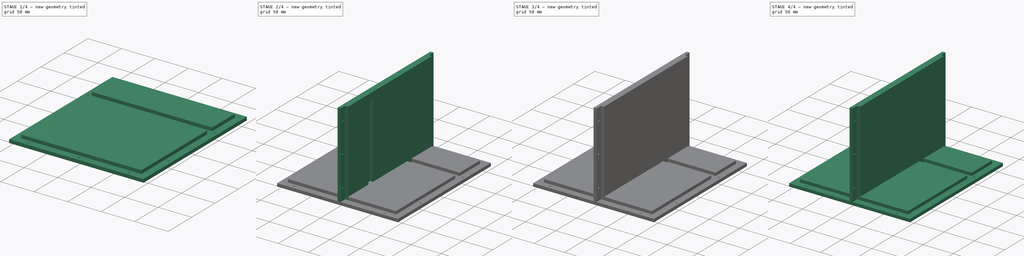
[diagram: build sequence overview — one tinted view per stage of 4, left to right]
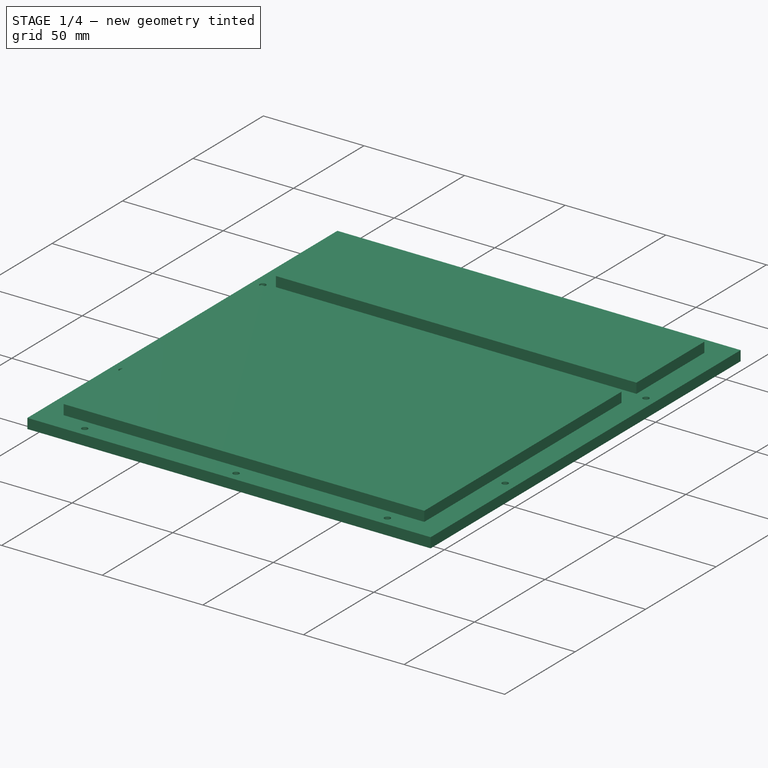
[diagram: stage 1 of 4 — iso view after this stage's code; geometry added in this stage tinted green]
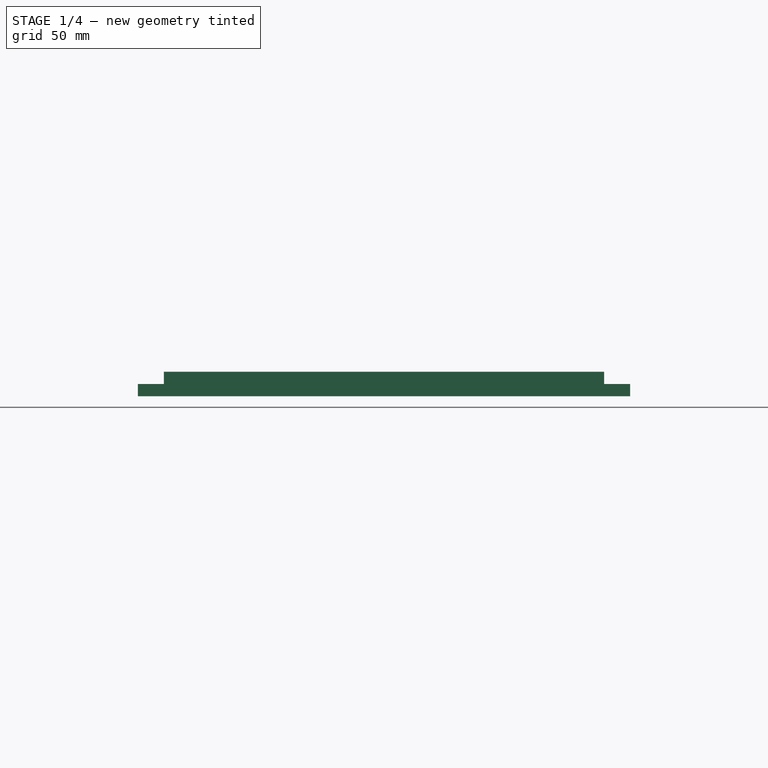
[diagram: stage 1 of 4 — front view after this stage's code; geometry added in this stage tinted green]
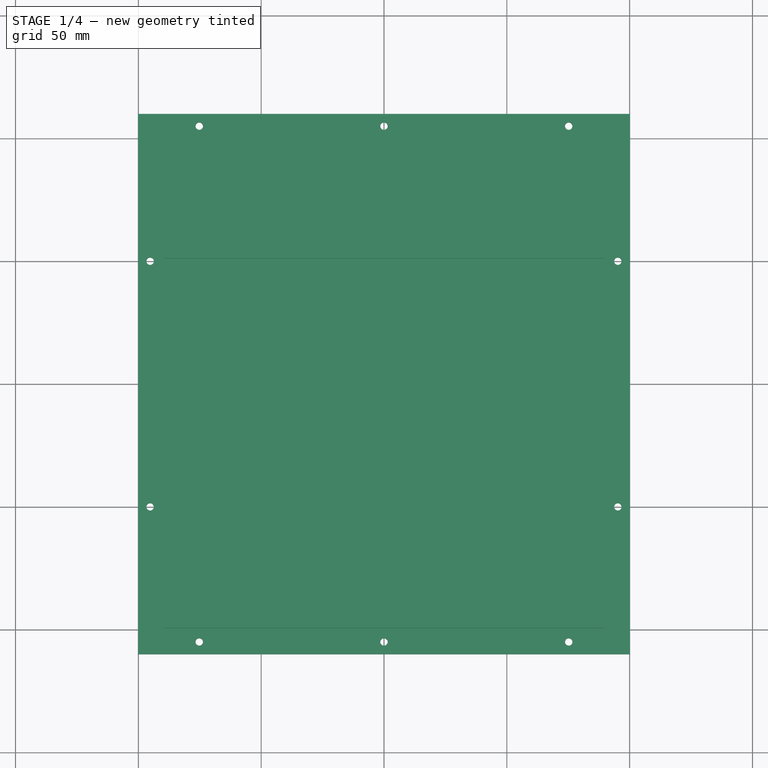
[diagram: stage 1 of 4 — top view after this stage's code; geometry added in this stage tinted green]
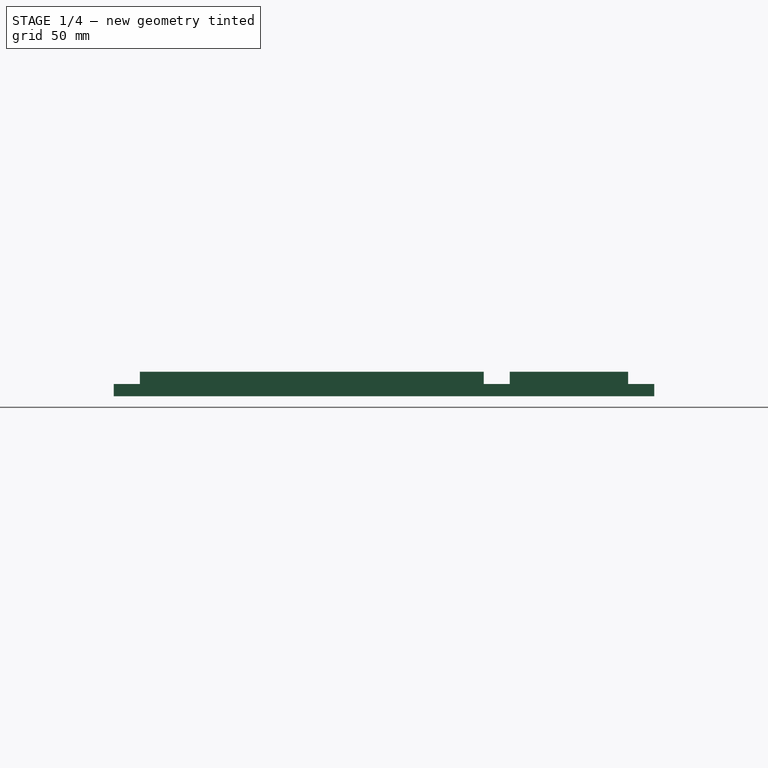
[diagram: stage 1 of 4 — right view after this stage's code; geometry added in this stage tinted green]
FCSTD DOCUMENT  (FreeCAD 1.0R39109 (Git))
Label: Powerstation
License: All rights reserved
LicenseURL: http://en.wikipedia.org/wiki/All_rights_reserved
objects: Sketcher::SketchObject×13, PartDesign::Pad×8, PartDesign::Pocket×5, PartDesign::Body×4, TechDraw::DrawSVGTemplate×4, TechDraw::DrawProjGroupItem×4, TechDraw::DrawPage×4, TechDraw::DrawViewDimension×4
note: 75 computed .brp shape members not serialized (recipe doc carries the construction recipe); baked Part::Feature solids carry a one-line shape summary decoded from their .brp

FEATURE [Sketcher::SketchObject] Sketch
  ArcFitTolerance = 1e-06
  AttachmentSupport = -> [XY_Plane]
  FullyConstrained = true
  MakeInternals = false
  MapMode = 5
  sketch-geometry (5):
    g0: LineSegment StartX=-100.2 StartY=110 StartZ=0 EndX=-100.2 EndY=-110 EndZ=0
    g1: LineSegment StartX=-100.2 StartY=-110 StartZ=0 EndX=100.2 EndY=-110 EndZ=0
    g2: LineSegment StartX=100.2 StartY=-110 StartZ=0 EndX=100.2 EndY=110 EndZ=0
    g3: LineSegment StartX=100.2 StartY=110 StartZ=0 EndX=-100.2 EndY=110 EndZ=0
    g4: GeomPoint [constr] X=-6e-16 Y=-2e-16 Z=0
  constraints (12):
    c: Coincident(g0,g1)
    c: Coincident(g1,g2)
    c: Coincident(g2,g3)
    c: Coincident(g3,g0)
    c: Vertical(g0)
    c: Vertical(g2)
    c: Horizontal(g1)
    c: Horizontal(g3)
    c: Symmetric(g2,g0,g4)
    c: Coincident(g4,g-1)
    c: DistanceX(g3,g3) = 200.4
    c: DistanceY(g0,g0) = 220
FEATURE [PartDesign::Pad] Pad
  Direction = (0,0,1)
  Length = 5
  Length2 = 10
  Profile = -> Sketch
  ReferenceAxis = -> Sketch [N_Axis]
  Suppressed = false
  Type = 0
FEATURE [Sketcher::SketchObject] Sketch001
  ArcFitTolerance = 1e-06
  AttachmentSupport = -> [Pad]
  ExternalGeometry = -> [Pad]
  FullyConstrained = true
  MakeInternals = false
  MapMode = 5
  Placement = pos=(0,0,5) rot=(0,0,1;0rad)
  sketch-geometry (8):
    g0: LineSegment StartX=-89.6 StartY=99.4 StartZ=0 EndX=-89.6 EndY=51.2 EndZ=0
    g1: LineSegment StartX=-89.6 StartY=51.2 StartZ=0 EndX=89.6 EndY=51.2 EndZ=0
    g2: LineSegment StartX=89.6 StartY=51.2 StartZ=0 EndX=89.6 EndY=99.4 EndZ=0
    g3: LineSegment StartX=89.6 StartY=99.4 StartZ=0 EndX=-89.6 EndY=99.4 EndZ=0
    g4: LineSegment StartX=-89.6 StartY=40.6 StartZ=0 EndX=-89.6 EndY=-99.4 EndZ=0
    g5: LineSegment StartX=-89.6 StartY=-99.4 StartZ=0 EndX=89.6 EndY=-99.4 EndZ=0
    g6: LineSegment StartX=89.6 StartY=-99.4 StartZ=0 EndX=89.6 EndY=40.6 EndZ=0
    g7: LineSegment StartX=89.6 StartY=40.6 StartZ=0 EndX=-89.6 EndY=40.6 EndZ=0
  constraints (24):
    c: Coincident(g0,g1)
    c: Coincident(g1,g2)
    c: Coincident(g2,g3)
    c: Coincident(g3,g0)
    c: Vertical(g0)
    c: Vertical(g2)
    c: Horizontal(g1)
    c: Horizontal(g3)
    c: Coincident(g4,g5)
    c: Coincident(g5,g6)
    c: Coincident(g6,g7)
    c: Coincident(g7,g4)
    c: Vertical(g4)
    c: Vertical(g6)
    c: Horizontal(g5)
    c: Horizontal(g7)
    c: Distance(g-6,g6) = 10.6
    c: Distance(g-6,g5) = 10.6
    c: Distance(g-6,g4) = 10.6
    c: Distance(g-4,g3) = 10.6
    c: Vertical(g0,g4)
    c: Vertical(g1,g6)
    c: Distance(g6,g1) = 10.6
    c: DistanceY(g6,g6) = 140
FEATURE [PartDesign::Pad] Pad001
  BaseFeature = -> Pad
  Direction = (0,0,1)
  Length = 5
  Length2 = 10
  Profile = -> Sketch001
  ReferenceAxis = -> Sketch001 [N_Axis]
  Suppressed = false
  Type = 0
FEATURE [Sketcher::SketchObject] Sketch002
  ArcFitTolerance = 1e-06
  AttachmentSupport = -> [Pad001]
  ExternalGeometry = -> [Pad001]
  FullyConstrained = true
  MakeInternals = false
  MapMode = 5
  Placement = pos=(0,0,5) rot=(0,0,1;0rad)
  sketch-geometry (10):
    g0: Circle CenterX=-75.2 CenterY=105 CenterZ=0 NormalX=0 NormalY=0 NormalZ=1 AngleXU=0 Radius=1.5
    g1: Circle CenterX=0 CenterY=105 CenterZ=0 NormalX=0 NormalY=0 NormalZ=1 AngleXU=0 Radius=1.5
    g2: Circle CenterX=75.2 CenterY=105 CenterZ=0 NormalX=0 NormalY=0 NormalZ=1 AngleXU=0 Radius=1.5
    g3: Circle CenterX=-75.2 CenterY=-105 CenterZ=0 NormalX=0 NormalY=0 NormalZ=1 AngleXU=0 Radius=1.5
    g4: Circle CenterX=0 CenterY=-105 CenterZ=0 NormalX=0 NormalY=0 NormalZ=1 AngleXU=0 Radius=1.5
    g5: Circle CenterX=75.2 CenterY=-105 CenterZ=0 NormalX=0 NormalY=0 NormalZ=1 AngleXU=0 Radius=1.5
    g6: Circle CenterX=-95.2 CenterY=50 CenterZ=0 NormalX=0 NormalY=0 NormalZ=1 AngleXU=0 Radius=1.5
    g7: Circle CenterX=-95.2 CenterY=-50 CenterZ=0 NormalX=0 NormalY=0 NormalZ=1 AngleXU=0 Radius=1.5
    g8: Circle CenterX=95.2 CenterY=50 CenterZ=0 NormalX=0 NormalY=0 NormalZ=1 AngleXU=0 Radius=1.5
    g9: Circle CenterX=95.2 CenterY=-50 CenterZ=0 NormalX=0 NormalY=0 NormalZ=1 AngleXU=0 Radius=1.5
  constraints (30):
    c: PointOnObject(g1,g-2)
    c: PointOnObject(g4,g-2)
    c: Equal(g0,g1)
    c: Equal(g1,g2)
    c: Equal(g2,g8)
    c: Equal(g8,g9)
    c: Equal(g9,g5)
    c: Equal(g5,g4)
    c: Equal(g4,g3)
    c: Equal(g3,g7)
    c: Equal(g7,g6)
    c: Diameter(g2) = 3
    c: DistanceX(g2,g-4) = 25
    c: DistanceY(g2,g-4) = 5
    c: Distance(g0,g-3) = 25
    c: Horizontal(g0,g1)
    c: Horizontal(g1,g2)
    c: Vertical(g2,g5)
    c: Vertical(g3,g0)
    c: Horizontal(g3,g4)
    c: Horizontal(g4,g5)
    c: DistanceY(g-4,g5) = 5
    c: Distance(g8,g-1) = 50
    c: Distance(g9,g-1) = 50
    c: Distance(g9,g-4) = 5
    c: Distance(g7,g-3) = 5
    c: Vertical(g6,g7)
    c: Horizontal(g7,g9)
    c: Vertical(g9,g8)
    c: Horizontal(g8,g6)
FEATURE [PartDesign::Pocket] Pocket
  BaseFeature = -> Pad001
  Direction = (0,0,-1)
  Length = 5
  Length2 = 5
  Profile = -> Sketch002
  ReferenceAxis = -> Sketch002 [N_Axis]
  Suppressed = false
  Type = 0
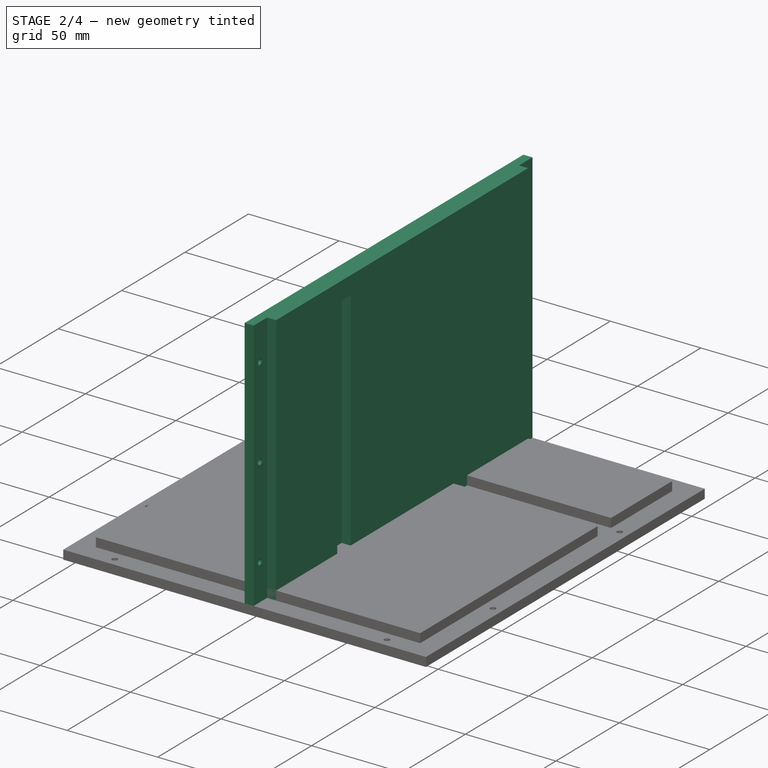
[diagram: stage 2 of 4 — iso view after this stage's code; geometry added in this stage tinted green]
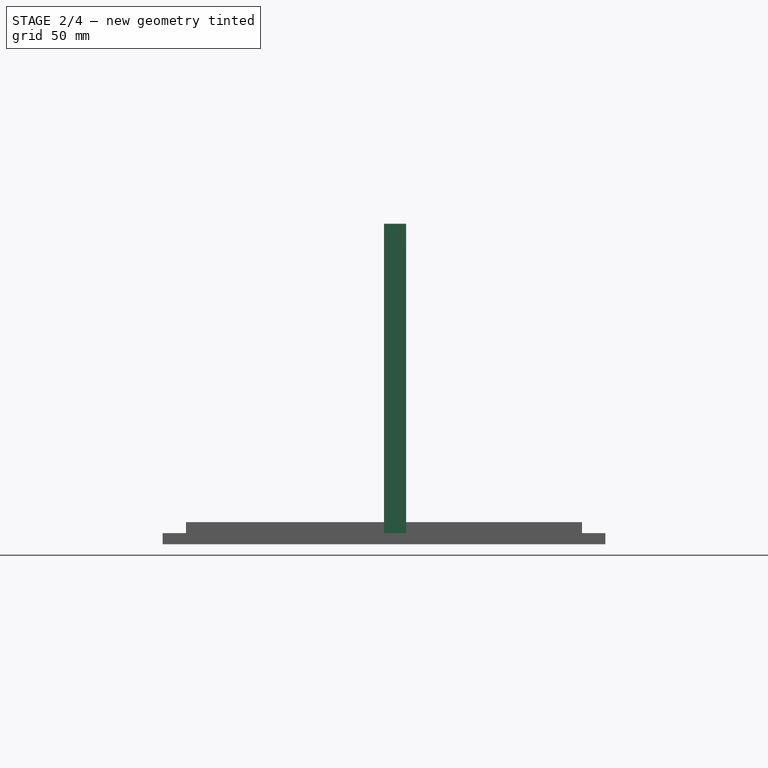
[diagram: stage 2 of 4 — front view after this stage's code; geometry added in this stage tinted green]
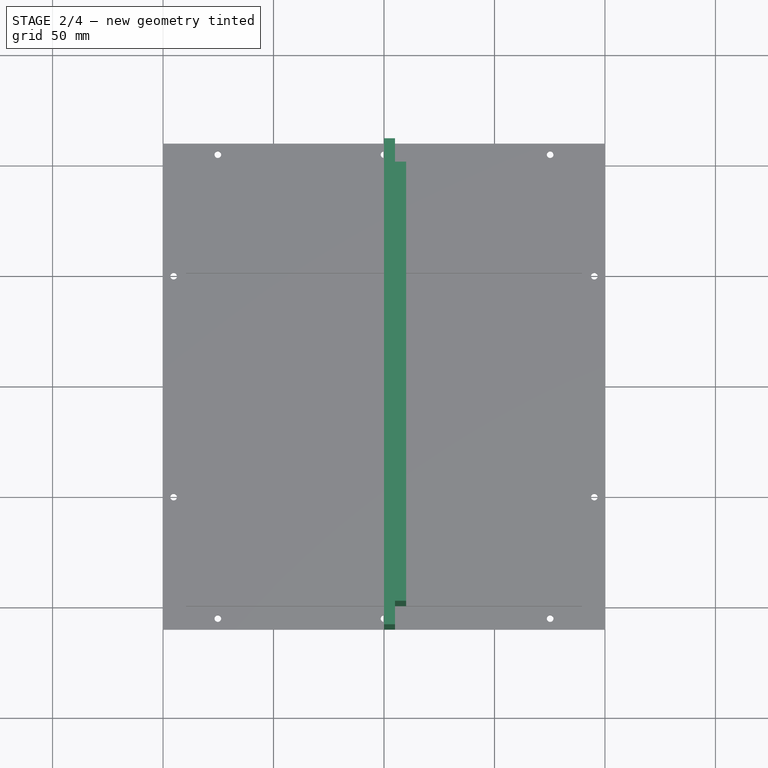
[diagram: stage 2 of 4 — top view after this stage's code; geometry added in this stage tinted green]
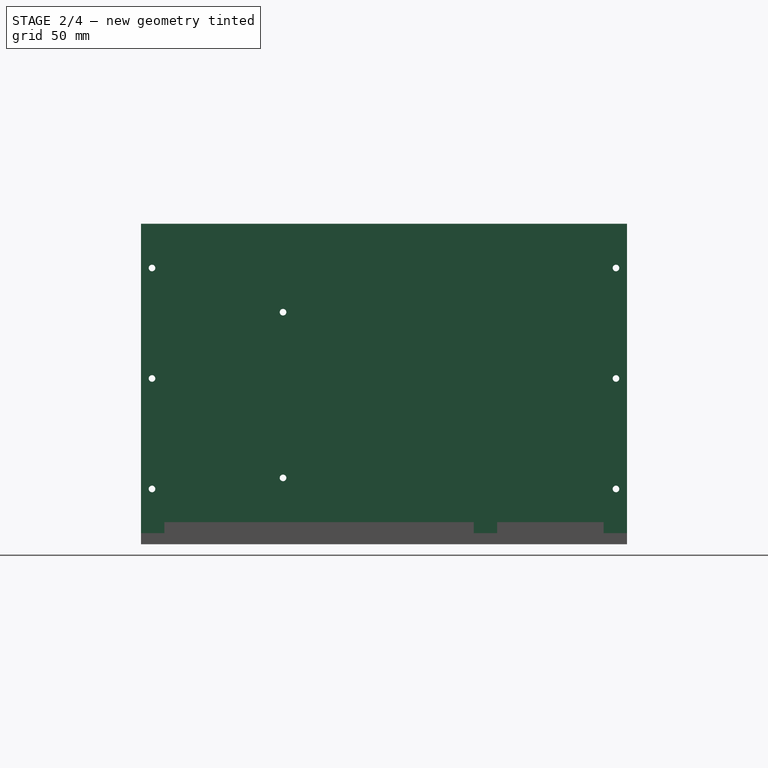
[diagram: stage 2 of 4 — right view after this stage's code; geometry added in this stage tinted green]
FEATURE [PartDesign::Body] Body002  label="Seitenteil-geschlossen"
  AllowCompound = false
  Group = -> [Sketch006,Pad004,Sketch007,Pad005,Sketch008,Pocket002]
  Origin = -> Origin002
  Placement = pos=(-100,0,0) rot=(0,0,1;0rad)
  Tip = -> Pocket002
FEATURE [Sketcher::SketchObject] Sketch009
  ArcFitTolerance = 1e-06
  AttachmentSupport = -> [YZ_Plane003]
  FullyConstrained = true
  MakeInternals = false
  MapMode = 5
  Placement = pos=(0,0,0) rot=(0.57735,0.57735,0.57735;2.0944rad)
  sketch-geometry (4):
    g0: LineSegment StartX=-110 StartY=5 StartZ=0 EndX=110 EndY=5 EndZ=0
    g1: LineSegment StartX=110 StartY=5 StartZ=0 EndX=110 EndY=145 EndZ=0
    g2: LineSegment StartX=110 StartY=145 StartZ=0 EndX=-110 EndY=145 EndZ=0
    g3: LineSegment StartX=-110 StartY=145 StartZ=0 EndX=-110 EndY=5 EndZ=0
  constraints (12):
    c: Coincident(g0,g1)
    c: Coincident(g1,g2)
    c: Coincident(g2,g3)
    c: Coincident(g3,g0)
    c: Horizontal(g0)
    c: Horizontal(g2)
    c: Vertical(g1)
    c: Vertical(g3)
    c: Distance(g1,g3) = 220
    c: Distance(g0,g2) = 140
    c: Distance(g0,g-1) = 5
    c: DistanceX(g0,g-1) = 110
FEATURE [PartDesign::Pad] Pad006
  Direction = (1,0,0)
  Length = 5
  Length2 = 10
  Placement = pos=(0,0,0) rot=(1,1,1;2.0944rad)
  Profile = -> Sketch009
  ReferenceAxis = -> Sketch009 [N_Axis]
  Suppressed = false
  Type = 0
FEATURE [Sketcher::SketchObject] Sketch010
  ArcFitTolerance = 1e-06
  AttachmentSupport = -> [Pad006]
  ExternalGeometry = -> [Pad006]
  FullyConstrained = true
  MakeInternals = false
  MapMode = 5
  Placement = pos=(5,0,0) rot=(0.57735,0.57735,0.57735;2.0944rad)
  sketch-geometry (8):
    g0: LineSegment StartX=-99.4 StartY=5 StartZ=0 EndX=-99.4 EndY=145 EndZ=0
    g1: LineSegment StartX=-99.4 StartY=145 StartZ=0 EndX=99.4 EndY=145 EndZ=0
    g2: LineSegment StartX=99.4 StartY=145 StartZ=0 EndX=99.4 EndY=5 EndZ=0
    g3: LineSegment StartX=99.4 StartY=5 StartZ=0 EndX=-40.6 EndY=5 EndZ=0
    g4: LineSegment StartX=-40.6 StartY=5 StartZ=0 EndX=-40.6 EndY=135 EndZ=0
    g5: LineSegment StartX=-40.6 StartY=135 StartZ=0 EndX=-51.2 EndY=135 EndZ=0
    g6: LineSegment StartX=-51.2 StartY=135 StartZ=0 EndX=-51.2 EndY=5 EndZ=0
    g7: LineSegment StartX=-51.2 StartY=5 StartZ=0 EndX=-99.4 EndY=5 EndZ=0
  constraints (24):
    c: PointOnObject(g0,g-4)
    c: PointOnObject(g0,g-3)
    c: Vertical(g0)
    c: Coincident(g0,g1)
    c: PointOnObject(g1,g-3)
    c: Coincident(g1,g2)
    c: PointOnObject(g2,g-4)
    c: Vertical(g2)
    c: Coincident(g2,g3)
    c: PointOnObject(g3,g-4)
    c: Coincident(g3,g4)
    c: Vertical(g4)
    c: Coincident(g4,g5)
    c: Horizontal(g5)
    c: Coincident(g5,g6)
    c: PointOnObject(g6,g-4)
    c: Vertical(g6)
    c: Coincident(g6,g7)
    c: Coincident(g7,g0)
    c: Distance(g-4,g0) = 10.6
    c: Distance(g6,g3) = 10.6
    c: Distance(g2,g-4) = 10.6
    c: DistanceY(g4,g4) = 130
    c: DistanceX(g3,g2) = 140
FEATURE [PartDesign::Pad] Pad007
  BaseFeature = -> Pad006
  Direction = (1,0,0)
  Length = 5
  Length2 = 10
  Placement = pos=(0,0,0) rot=(1,1,1;2.0944rad)
  Profile = -> Sketch010
  ReferenceAxis = -> Sketch010 [N_Axis]
  Suppressed = false
  Type = 0
FEATURE [Sketcher::SketchObject] Sketch011
  ArcFitTolerance = 1e-06
  AttachmentSupport = -> [Pad007]
  ExternalGeometry = -> [Pad007]
  FullyConstrained = true
  MakeInternals = false
  MapMode = 5
  Placement = pos=(5,0,0) rot=(0.57735,0.57735,0.57735;2.0944rad)
  sketch-geometry (8):
    g0: Circle CenterX=-105 CenterY=125 CenterZ=0 NormalX=0 NormalY=0 NormalZ=1 AngleXU=0 Radius=1.5
    g1: Circle CenterX=-105 CenterY=75 CenterZ=0 NormalX=0 NormalY=0 NormalZ=1 AngleXU=0 Radius=1.5
    g2: Circle CenterX=-105 CenterY=25 CenterZ=0 NormalX=0 NormalY=0 NormalZ=1 AngleXU=0 Radius=1.5
    g3: Circle CenterX=105 CenterY=125 CenterZ=0 NormalX=0 NormalY=0 NormalZ=1 AngleXU=0 Radius=1.5
    g4: Circle CenterX=105 CenterY=75 CenterZ=0 NormalX=0 NormalY=0 NormalZ=1 AngleXU=0 Radius=1.5
    g5: Circle CenterX=105 CenterY=25 CenterZ=0 NormalX=0 NormalY=0 NormalZ=1 AngleXU=0 Radius=1.5
    g6: Circle CenterX=-45.7 CenterY=105 CenterZ=0 NormalX=0 NormalY=0 NormalZ=1 AngleXU=0 Radius=1.5
    g7: Circle CenterX=-45.7 CenterY=30 CenterZ=0 NormalX=0 NormalY=0 NormalZ=1 AngleXU=0 Radius=1.5
  constraints (24):
    c: Vertical(g0,g1)
    c: Vertical(g1,g2)
    c: Vertical(g6,g7)
    c: Vertical(g3,g4)
    c: Vertical(g4,g5)
    c: Horizontal(g0,g3)
    c: Horizontal(g1,g4)
    c: Horizontal(g2,g5)
    c: DistanceY(g3,g-4) = 20
    c: Distance(g3,g4) = 50
    c: DistanceY(g-4,g5) = 20
    c: DistanceX(g5,g-4) = 5
    c: DistanceX(g-3,g2) = 5
    c: DistanceX(g7,g-5) = 5.1
    c: DistanceY(g-1,g7) = 30
    c: Distance(g6,g-6) = 30
    c: Equal(g0,g1)
    c: Equal(g1,g2)
    c: Equal(g2,g6)
    c: Equal(g6,g7)
    c: Equal(g7,g3)
    c: Equal(g3,g4)
    c: Equal(g4,g5)
    c: Diameter(g0) = 3
FEATURE [PartDesign::Pocket] Pocket003
  BaseFeature = -> Pad007
  Direction = (-1,0,0)
  Length = 5
  Length2 = 5
  Placement = pos=(0,0,0) rot=(1,1,1;2.0944rad)
  Profile = -> Sketch011
  ReferenceAxis = -> Sketch011 [N_Axis]
  Suppressed = false
  Type = 0
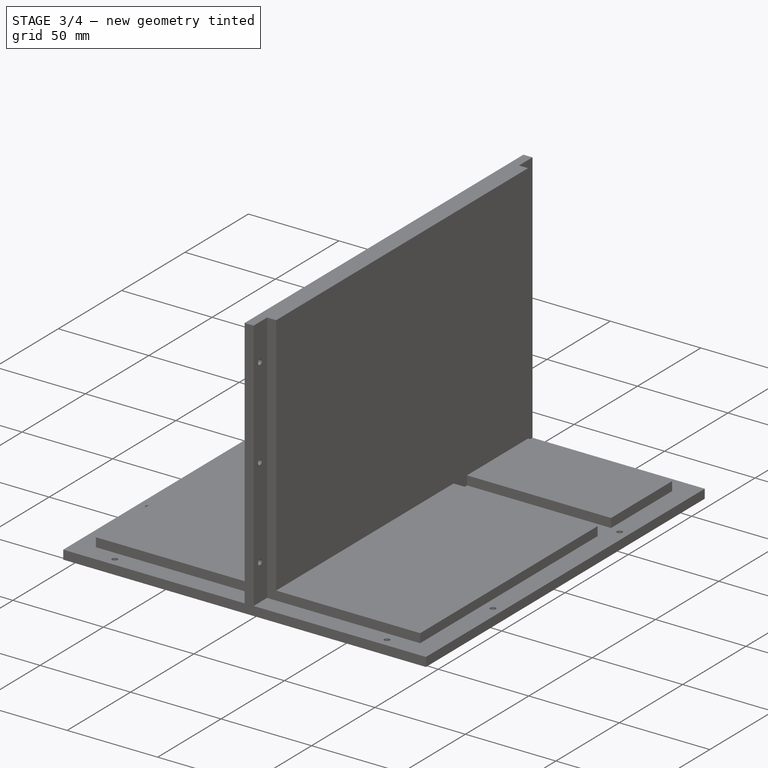
[diagram: stage 3 of 4 — iso view after this stage's code; geometry added in this stage tinted green]
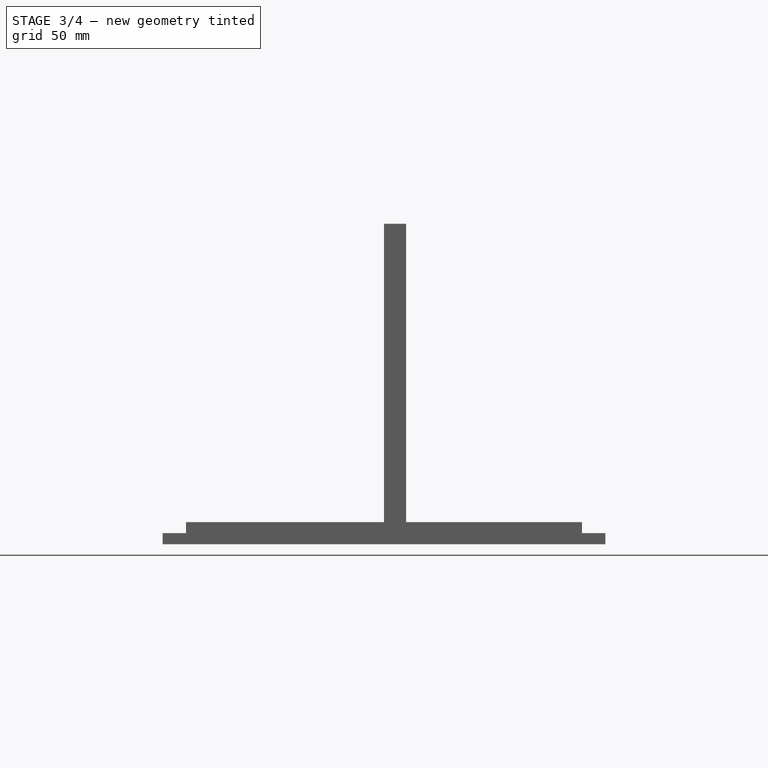
[diagram: stage 3 of 4 — front view after this stage's code; geometry added in this stage tinted green]
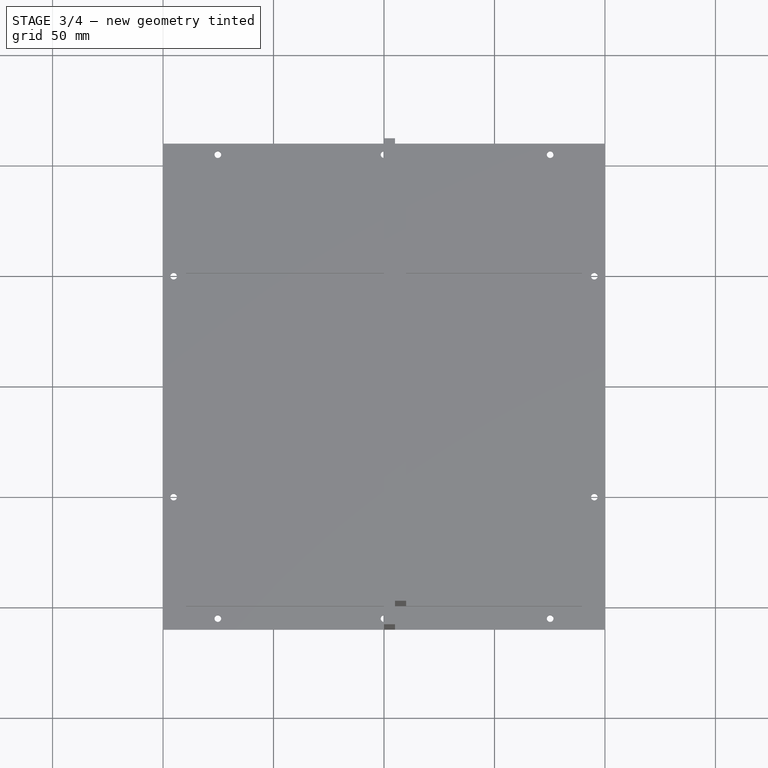
[diagram: stage 3 of 4 — top view after this stage's code; geometry added in this stage tinted green]
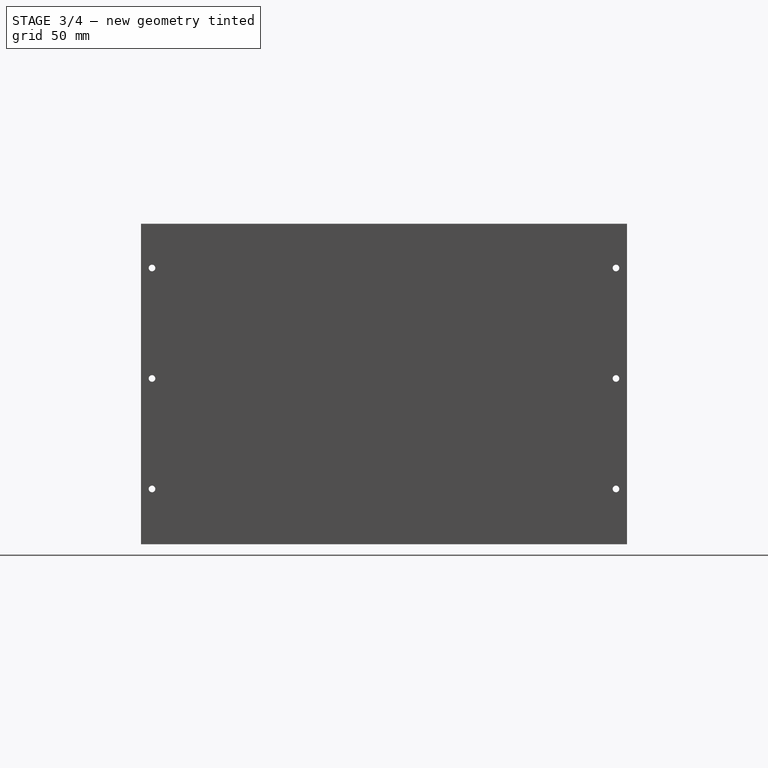
[diagram: stage 3 of 4 — right view after this stage's code; geometry added in this stage tinted green]
FEATURE [PartDesign::Body] Body001  label="Deckel"
  AllowCompound = false
  Group = -> [Sketch003,Pad002,Sketch004,Pad003,Sketch005,Pocket001]
  Origin = -> Origin001
  Placement = pos=(0,0,150) rot=(0,1,0;3.14159rad)
  Tip = -> Pocket001
FEATURE [Sketcher::SketchObject] Sketch006
  ArcFitTolerance = 1e-06
  AttachmentSupport = -> [YZ_Plane002]
  FullyConstrained = true
  MakeInternals = false
  MapMode = 5
  Placement = pos=(0,0,0) rot=(0.57735,0.57735,0.57735;2.0944rad)
  sketch-geometry (4):
    g0: LineSegment StartX=-110 StartY=5 StartZ=0 EndX=110 EndY=5 EndZ=0
    g1: LineSegment StartX=110 StartY=5 StartZ=0 EndX=110 EndY=145 EndZ=0
    g2: LineSegment StartX=110 StartY=145 StartZ=0 EndX=-110 EndY=145 EndZ=0
    g3: LineSegment StartX=-110 StartY=145 StartZ=0 EndX=-110 EndY=5 EndZ=0
  constraints (12):
    c: Coincident(g0,g1)
    c: Coincident(g1,g2)
    c: Coincident(g2,g3)
    c: Coincident(g3,g0)
    c: Horizontal(g0)
    c: Horizontal(g2)
    c: Vertical(g1)
    c: Vertical(g3)
    c: Distance(g1,g3) = 220
    c: Distance(g0,g2) = 140
    c: Distance(g0,g-1) = 5
    c: DistanceX(g0,g-1) = 110
FEATURE [PartDesign::Pad] Pad004
  Direction = (1,0,0)
  Length = 5
  Length2 = 10
  Placement = pos=(0,0,0) rot=(1,1,1;2.0944rad)
  Profile = -> Sketch006
  ReferenceAxis = -> Sketch006 [N_Axis]
  Suppressed = false
  Type = 0
FEATURE [Sketcher::SketchObject] Sketch007
  ArcFitTolerance = 1e-06
  AttachmentSupport = -> [Pad004]
  ExternalGeometry = -> [Pad004]
  FullyConstrained = true
  MakeInternals = false
  MapMode = 5
  Placement = pos=(5,0,0) rot=(0.57735,0.57735,0.57735;2.0944rad)
  sketch-geometry (8):
    g0: LineSegment StartX=-99.4 StartY=5 StartZ=0 EndX=-99.4 EndY=145 EndZ=0
    g1: LineSegment StartX=-99.4 StartY=145 StartZ=0 EndX=99.4 EndY=145 EndZ=0
    g2: LineSegment StartX=99.4 StartY=145 StartZ=0 EndX=99.4 EndY=5 EndZ=0
    g3: LineSegment StartX=99.4 StartY=5 StartZ=0 EndX=51.2 EndY=5 EndZ=0
    g4: LineSegment StartX=51.2 StartY=5 StartZ=0 EndX=51.2 EndY=135 EndZ=0
    g5: LineSegment StartX=51.2 StartY=135 StartZ=0 EndX=40.6 EndY=135 EndZ=0
    g6: LineSegment StartX=40.6 StartY=135 StartZ=0 EndX=40.6 EndY=5 EndZ=0
    g7: LineSegment StartX=40.6 StartY=5 StartZ=0 EndX=-99.4 EndY=5 EndZ=0
  constraints (24):
    c: PointOnObject(g0,g-4)
    c: PointOnObject(g0,g-3)
    c: Vertical(g0)
    c: Coincident(g0,g1)
    c: PointOnObject(g1,g-3)
    c: Coincident(g1,g2)
    c: PointOnObject(g2,g-4)
    c: Vertical(g2)
    c: Coincident(g2,g3)
    c: PointOnObject(g3,g-4)
    c: Coincident(g3,g4)
    c: Vertical(g4)
    c: Coincident(g4,g5)
    c: Horizontal(g5)
    c: Coincident(g5,g6)
    c: PointOnObject(g6,g-4)
    c: Vertical(g6)
    c: Coincident(g6,g7)
    c: Coincident(g7,g0)
    c: Distance(g-4,g0) = 10.6
    c: Distance(g6,g3) = 10.6
    c: Distance(g2,g-4) = 10.6
    c: DistanceY(g4,g4) = 130
    c: Distance(g6,g0) = 140
FEATURE [PartDesign::Pad] Pad005
  BaseFeature = -> Pad004
  Direction = (1,0,0)
  Length = 5
  Length2 = 10
  Placement = pos=(0,0,0) rot=(1,1,1;2.0944rad)
  Profile = -> Sketch007
  ReferenceAxis = -> Sketch007 [N_Axis]
  Suppressed = false
  Type = 0
FEATURE [Sketcher::SketchObject] Sketch008
  ArcFitTolerance = 1e-06
  AttachmentSupport = -> [Pad005]
  ExternalGeometry = -> [Pad005]
  FullyConstrained = true
  MakeInternals = false
  MapMode = 5
  Placement = pos=(5,0,0) rot=(0.57735,0.57735,0.57735;2.0944rad)
  sketch-geometry (8):
    g0: Circle CenterX=-105 CenterY=125 CenterZ=0 NormalX=0 NormalY=0 NormalZ=1 AngleXU=0 Radius=1.5
    g1: Circle CenterX=-105 CenterY=75 CenterZ=0 NormalX=0 NormalY=0 NormalZ=1 AngleXU=0 Radius=1.5
    g2: Circle CenterX=-105 CenterY=25 CenterZ=0 NormalX=0 NormalY=0 NormalZ=1 AngleXU=0 Radius=1.5
    g3: Circle CenterX=105 CenterY=125 CenterZ=0 NormalX=0 NormalY=0 NormalZ=1 AngleXU=0 Radius=1.5
    g4: Circle CenterX=105 CenterY=75 CenterZ=0 NormalX=0 NormalY=0 NormalZ=1 AngleXU=0 Radius=1.5
    g5: Circle CenterX=105 CenterY=25 CenterZ=0 NormalX=0 NormalY=0 NormalZ=1 AngleXU=0 Radius=1.5
    g6: Circle CenterX=45.3 CenterY=105 CenterZ=0 NormalX=0 NormalY=0 NormalZ=1 AngleXU=0 Radius=1.5
    g7: Circle CenterX=45.3 CenterY=30 CenterZ=0 NormalX=0 NormalY=0 NormalZ=1 AngleXU=0 Radius=1.5
  constraints (24):
    c: Vertical(g0,g1)
    c: Vertical(g1,g2)
    c: Vertical(g6,g7)
    c: Vertical(g3,g4)
    c: Vertical(g4,g5)
    c: Horizontal(g0,g3)
    c: Horizontal(g1,g4)
    c: Horizontal(g2,g5)
    c: DistanceY(g3,g-4) = 20
    c: Distance(g3,g4) = 50
    c: DistanceY(g-4,g5) = 20
    c: DistanceX(g5,g-4) = 5
    c: DistanceX(g-3,g2) = 5
    c: DistanceX(g7,g-5) = 5.1
    c: DistanceY(g-1,g7) = 30
    c: Distance(g6,g-6) = 30
    c: Equal(g0,g1)
    c: Equal(g1,g2)
    c: Equal(g2,g6)
    c: Equal(g6,g7)
    c: Equal(g7,g3)
    c: Equal(g3,g4)
    c: Equal(g4,g5)
    c: Diameter(g0) = 3
FEATURE [PartDesign::Pocket] Pocket002
  BaseFeature = -> Pad005
  Direction = (-1,0,0)
  Length = 5
  Length2 = 5
  Placement = pos=(0,0,0) rot=(1,1,1;2.0944rad)
  Profile = -> Sketch008
  ReferenceAxis = -> Sketch008 [N_Axis]
  Suppressed = false
  Type = 0
FEATURE [Sketcher::SketchObject] Sketch012
  ArcFitTolerance = 1e-06
  AttachmentSupport = -> [Pocket003]
  ExternalGeometry = -> [Pocket003,Sketch010]
  FullyConstrained = false
  MakeInternals = false
  MapMode = 5
  Placement = pos=(10,0,0) rot=(0.57735,0.57735,0.57735;2.0944rad)
  sketch-geometry (10):
    g0: Circle CenterX=-77.4 CenterY=115 CenterZ=0 NormalX=0 NormalY=0 NormalZ=1 AngleXU=0 Radius=14.75
    g1: Circle CenterX=-77.4 CenterY=65 CenterZ=0 NormalX=0 NormalY=0 NormalZ=1 AngleXU=0 Radius=14.75
    g2: Circle CenterX=-77.4 CenterY=26 CenterZ=0 NormalX=0 NormalY=0 NormalZ=1 AngleXU=0 Radius=8.5
    g3: LineSegment StartX=20 StartY=130 StartZ=0 EndX=33 EndY=130 EndZ=0
    g4: LineSegment StartX=33 StartY=130 StartZ=0 EndX=36 EndY=127.5 EndZ=0
    g5: LineSegment StartX=36 StartY=127.5 StartZ=0 EndX=36 EndY=124.5 EndZ=0
    g6: LineSegment StartX=36 StartY=124.5 StartZ=0 EndX=33 EndY=122 EndZ=0
    g7: LineSegment StartX=33 StartY=122 StartZ=0 EndX=20 EndY=122 EndZ=0
    g8: LineSegment StartX=20 StartY=122 StartZ=0 EndX=20 EndY=130 EndZ=0
    g9: LineSegment [constr] StartX=15.1132 StartY=126 StartZ=0 EndX=63.472 EndY=126 EndZ=0
  constraints (27):
    c: Vertical(g0,g1)
    c: Vertical(g1,g2)
    c: DistanceX(g-3,g0) = 22
    c: DistanceY(g0,g-3) = 30
    c: DistanceY(g1,g0) = 50
    c: DistanceY(g-3,g2) = 21
    c: Diameter(g0) = 29.5
    c: Diameter(g2) = 17
    c: Equal(g0,g1)
    c: Horizontal(g3)
    c: Coincident(g3,g4)
    c: Coincident(g4,g5)
    c: Vertical(g5)
    c: Coincident(g5,g6)
    c: Coincident(g6,g7)
    c: Horizontal(g7)
    c: Coincident(g7,g8)
    c: Coincident(g8,g3)
    c: Vertical(g6,g3)
    c: DistanceX(g7,g5) = 16
    c: DistanceY(g8,g8) = 8
    c: Distance(g-4,g3) = 15
    c: Distance(g7,g-2) = 20
    c: DistanceX(g3,g4) = 3
    c: DistanceY(g5,g5) = 3
    c: Symmetric(g3,g7,g9)
    c: Symmetric(g5,g4,g9)
FEATURE [PartDesign::Pocket] Pocket004
  BaseFeature = -> Pocket003
  Direction = (-1,0,0)
  Length = 10
  Length2 = 5
  Placement = pos=(0,0,0) rot=(1,1,1;2.0944rad)
  Profile = -> Sketch012
  ReferenceAxis = -> Sketch012 [N_Axis]
  Suppressed = false
  Type = 0
FEATURE [PartDesign::Body] Body003  label="Seitenteil-geschlossen001"
  AllowCompound = false
  Group = -> [Sketch009,Pad006,Sketch010,Pad007,Sketch011,Pocket003,Sketch012,Pocket004]
  Origin = -> Origin003
  Placement = pos=(100,0,0) rot=(0,0,1;3.14159rad)
  Tip = -> Pocket004
FEATURE [TechDraw::DrawSVGTemplate] Template  label="Vorlage"
  Height = 297
  Orientation = 1
  Template = /Applications/FreeCAD.app/Contents/Resources/share/Mod/TechDraw/Templates/A3_Landscape_blank.svg
  Width = 420
FEATURE [TechDraw::DrawProjGroupItem] View
  CoarseView = false
  Direction = (0,0,1)
  Focus = 100
  HardHidden = false
  IsoCount = 0
  IsoHidden = false
  IsoVisible = false
  LockPosition = false
  Perspective = false
  Rotation = 0
  RotationVector = (1,0,0)
  ScaleType = 0
  ScrubCount = 1
  SeamHidden = false
  SeamVisible = true
  SmoothHidden = false
  SmoothVisible = true
  Source = -> [Body]
  Type = 0
  X = 210
  XDirection = (1,0,0)
  Y = 148.5
FEATURE [TechDraw::DrawSVGTemplate] Template001  label="Vorlage001"
  Height = 297
  Orientation = 1
  Template = /Applications/FreeCAD.app/Contents/Resources/share/Mod/TechDraw/Templates/A3_Landscape_blank.svg
  Width = 420
FEATURE [TechDraw::DrawProjGroupItem] View001
  CoarseView = false
  Direction = (0,0,-1)
  Focus = 100
  HardHidden = false
  IsoCount = 0
  IsoHidden = false
  IsoVisible = false
  LockPosition = false
  Perspective = false
  Rotation = 0
  RotationVector = (1,0,0)
  ScaleType = 0
  ScrubCount = 1
  SeamHidden = false
  SeamVisible = true
  SmoothHidden = false
  SmoothVisible = true
  Source = -> [Body001]
  Type = 0
  X = 210
  XDirection = (1,0,0)
  Y = 148.5
FEATURE [TechDraw::DrawPage] Page001  label="Deckel001"
  KeepUpdated = true
  NextBalloonIndex = 1
  ProjectionType = 0
  Template = -> Template001
  Views = -> [View001]
FEATURE [TechDraw::DrawSVGTemplate] Template002  label="Vorlage002"
  Height = 297
  Orientation = 1
  Template = /Applications/FreeCAD.app/Contents/Resources/share/Mod/TechDraw/Templates/A3_Landscape_blank.svg
  Width = 420
FEATURE [TechDraw::DrawProjGroupItem] View002
  CoarseView = false
  Direction = (1,1e-16,2e-16)
  Focus = 100
  HardHidden = false
  IsoCount = 0
  IsoHidden = false
  IsoVisible = false
  LockPosition = false
  Perspective = false
  Rotation = 0
  RotationVector = (1,0,0)
  ScaleType = 0
  ScrubCount = 1
  SeamHidden = false
  SeamVisible = true
  SmoothHidden = false
  SmoothVisible = true
  Source = -> [Body002]
  Type = 0
  X = 210
  XDirection = (2e-16,1e-16,-1)
  Y = 148.5
FEATURE [TechDraw::DrawPage] Page002  label="Seitenteil-geschlossen002"
  KeepUpdated = true
  NextBalloonIndex = 1
  ProjectionType = 0
  Template = -> Template002
  Views = -> [View002]
FEATURE [TechDraw::DrawSVGTemplate] Template003  label="Vorlage003"
  Height = 297
  Orientation = 1
  Template = /Applications/FreeCAD.app/Contents/Resources/share/Mod/TechDraw/Templates/A3_Landscape_blank.svg
  Width = 420
FEATURE [TechDraw::DrawProjGroupItem] View003
  CoarseView = false
  Direction = (-1,-1e-16,0)
  Focus = 100
  HardHidden = false
  IsoCount = 0
  IsoHidden = false
  IsoVisible = false
  LockPosition = false
  Perspective = false
  Rotation = 0
  RotationVector = (1,0,0)
  ScaleType = 0
  ScrubCount = 1
  SeamHidden = false
  SeamVisible = true
  SmoothHidden = false
  SmoothVisible = true
  Source = -> [Body003]
  Type = 0
  X = 210
  XDirection = (0,2e-16,1)
  Y = 148.5
FEATURE [TechDraw::DrawViewDimension] Dimension  label="Maß"
  AngleOverride = false
  Arbitrary = false
  ArbitraryTolerances = false
  BoxCorners = (2) [(-70,-110,0),(70,110,0)]
  EqualTolerance = true
  ExtensionAngle = 0
  FormatSpec = %.2w
  FormatSpecOverTolerance = %+.2w
  FormatSpecUnderTolerance = %+.2w
  Inverted = false
  LineAngle = 0
  LockPosition = false
  MeasureType = 1
  OverTolerance = 0
  References2D = -> [View003]
  Rotation = 0
  ScaleType = 0
  TheoreticalExact = false
  Type = 1
  UnderTolerance = 0
  X = -52.7748
  Y = 127.763
FEATURE [TechDraw::DrawViewDimension] Dimension001  label="Maß001"
  AngleOverride = false
  Arbitrary = false
  ArbitraryTolerances = false
  BoxCorners = (2) [(-70,-110,0),(70,110,0)]
  EqualTolerance = true
  ExtensionAngle = 0
  FormatSpec = %.2w
  FormatSpecOverTolerance = %+.2w
  FormatSpecUnderTolerance = %+.2w
  Inverted = false
  LineAngle = 0
  LockPosition = false
  MeasureType = 1
  OverTolerance = 0
  References2D = -> [View003]
  Rotation = 0
  ScaleType = 0
  TheoreticalExact = false
  Type = 2
  UnderTolerance = 0
  X = -92.6375
  Y = 25.4606
FEATURE [TechDraw::DrawViewDimension] Dimension002  label="Maß002"
  AngleOverride = false
  Arbitrary = false
  ArbitraryTolerances = false
  BoxCorners = (2) [(-70,-110,0),(70,110,0)]
  EqualTolerance = true
  ExtensionAngle = 0
  FormatSpec = %.2w
  FormatSpecOverTolerance = %+.2w
  FormatSpecUnderTolerance = %+.2w
  Inverted = false
  LineAngle = 0
  LockPosition = false
  MeasureType = 1
  OverTolerance = 0
  References2D = -> [View003]
  Rotation = 0
  ScaleType = 0
  TheoreticalExact = false
  Type = 2
  UnderTolerance = 0
  X = 105.878
  Y = -114.597
FEATURE [TechDraw::DrawPage] Page003  label="Seitenteil-Bohrungen"
  KeepUpdated = true
  NextBalloonIndex = 1
  ProjectionType = 0
  Template = -> Template003
  Views = -> [View003,Dimension,Dimension001,Dimension002]
FEATURE [TechDraw::DrawViewDimension] Dimension003  label="Maß003"
  AngleOverride = false
  Arbitrary = false
  ArbitraryTolerances = false
  BoxCorners = (2) [(-100.2,-110,0),(100.2,110,0)]
  EqualTolerance = true
  ExtensionAngle = 0
  FormatSpec = %.2w
  FormatSpecOverTolerance = %+.2w
  FormatSpecUnderTolerance = %+.2w
  Inverted = false
  LineAngle = 0
  LockPosition = false
  MeasureType = 1
  OverTolerance = 0
  References2D = -> [View]
  Rotation = 0
  ScaleType = 0
  TheoreticalExact = false
  Type = 1
  UnderTolerance = 0
  X = 106.233
  Y = 129.556
FEATURE [TechDraw::DrawPage] Page  label="Grundplatte001"
  KeepUpdated = true
  NextBalloonIndex = 1
  ProjectionType = 0
  Template = -> Template
  Views = -> [View,Dimension003]
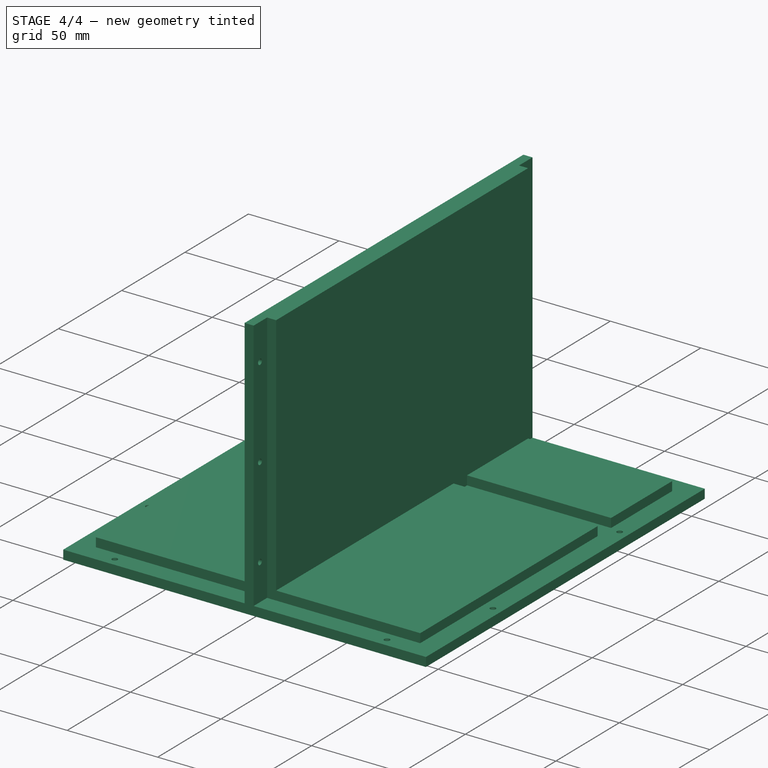
[diagram: stage 4 of 4 — iso view after this stage's code; geometry added in this stage tinted green]
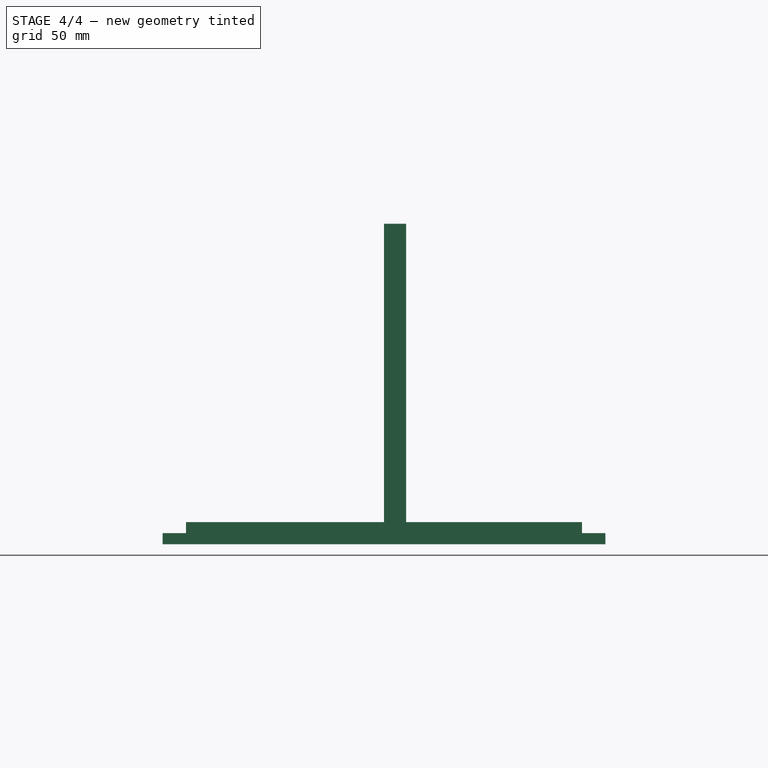
[diagram: stage 4 of 4 — front view after this stage's code; geometry added in this stage tinted green]
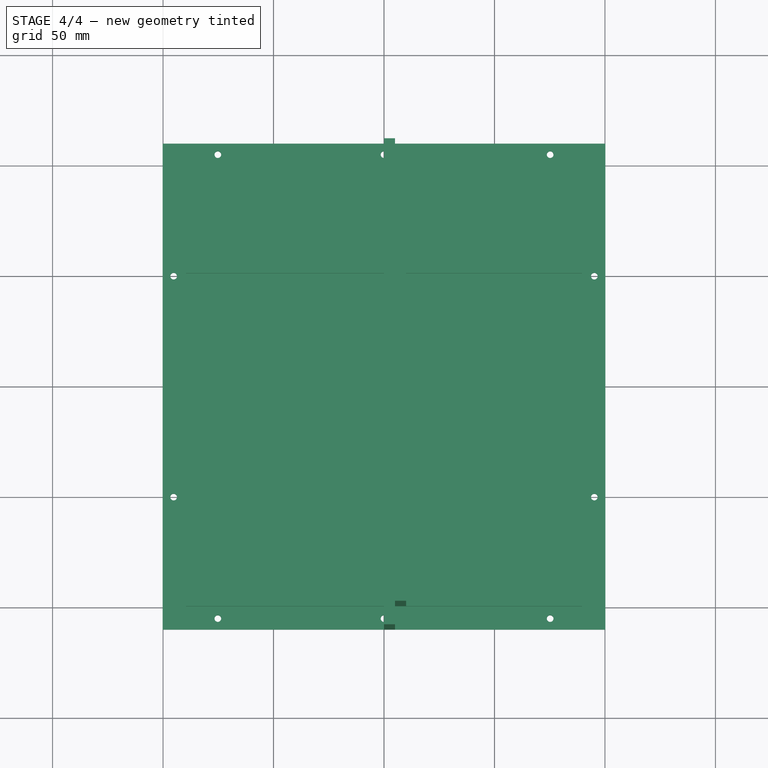
[diagram: stage 4 of 4 — top view after this stage's code; geometry added in this stage tinted green]
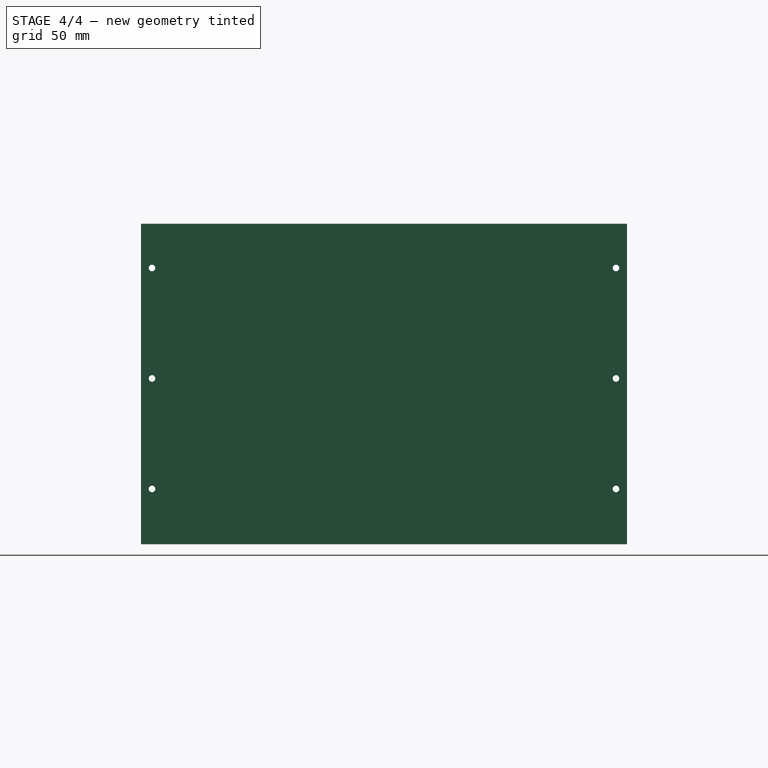
[diagram: stage 4 of 4 — right view after this stage's code; geometry added in this stage tinted green]
FEATURE [PartDesign::Body] Body  label="Grundplatte"
  AllowCompound = false
  Group = -> [Sketch,Pad,Sketch001,Pad001,Sketch002,Pocket]
  Origin = -> Origin
  Tip = -> Pocket
FEATURE [Sketcher::SketchObject] Sketch003
  ArcFitTolerance = 1e-06
  AttachmentSupport = -> [XY_Plane001]
  FullyConstrained = true
  MakeInternals = false
  MapMode = 5
  sketch-geometry (5):
    g0: LineSegment StartX=-100.2 StartY=110 StartZ=0 EndX=-100.2 EndY=-110 EndZ=0
    g1: LineSegment StartX=-100.2 StartY=-110 StartZ=0 EndX=100.2 EndY=-110 EndZ=0
    g2: LineSegment StartX=100.2 StartY=-110 StartZ=0 EndX=100.2 EndY=110 EndZ=0
    g3: LineSegment StartX=100.2 StartY=110 StartZ=0 EndX=-100.2 EndY=110 EndZ=0
    g4: GeomPoint [constr] X=-6e-16 Y=-2e-16 Z=0
  constraints (12):
    c: Coincident(g0,g1)
    c: Coincident(g1,g2)
    c: Coincident(g2,g3)
    c: Coincident(g3,g0)
    c: Vertical(g0)
    c: Vertical(g2)
    c: Horizontal(g1)
    c: Horizontal(g3)
    c: Symmetric(g2,g0,g4)
    c: Coincident(g4,g-1)
    c: DistanceX(g3,g3) = 200.4
    c: DistanceY(g0,g0) = 220
FEATURE [PartDesign::Pad] Pad002
  Direction = (0,0,1)
  Length = 5
  Length2 = 10
  Profile = -> Sketch003
  ReferenceAxis = -> Sketch003 [N_Axis]
  Suppressed = false
  Type = 0
FEATURE [Sketcher::SketchObject] Sketch004
  ArcFitTolerance = 1e-06
  AttachmentSupport = -> [Pad002]
  ExternalGeometry = -> [Pad002]
  FullyConstrained = true
  MakeInternals = false
  MapMode = 5
  Placement = pos=(0,0,5) rot=(0,0,1;0rad)
  sketch-geometry (8):
    g0: LineSegment StartX=-89.6 StartY=99.4 StartZ=0 EndX=-89.6 EndY=51.2 EndZ=0
    g1: LineSegment StartX=-89.6 StartY=51.2 StartZ=0 EndX=89.6 EndY=51.2 EndZ=0
    g2: LineSegment StartX=89.6 StartY=51.2 StartZ=0 EndX=89.6 EndY=99.4 EndZ=0
    g3: LineSegment StartX=89.6 StartY=99.4 StartZ=0 EndX=-89.6 EndY=99.4 EndZ=0
    g4: LineSegment StartX=-89.6 StartY=40.6 StartZ=0 EndX=-89.6 EndY=-99.4 EndZ=0
    g5: LineSegment StartX=-89.6 StartY=-99.4 StartZ=0 EndX=89.6 EndY=-99.4 EndZ=0
    g6: LineSegment StartX=89.6 StartY=-99.4 StartZ=0 EndX=89.6 EndY=40.6 EndZ=0
    g7: LineSegment StartX=89.6 StartY=40.6 StartZ=0 EndX=-89.6 EndY=40.6 EndZ=0
  constraints (24):
    c: Coincident(g0,g1)
    c: Coincident(g1,g2)
    c: Coincident(g2,g3)
    c: Coincident(g3,g0)
    c: Vertical(g0)
    c: Vertical(g2)
    c: Horizontal(g1)
    c: Horizontal(g3)
    c: Coincident(g4,g5)
    c: Coincident(g5,g6)
    c: Coincident(g6,g7)
    c: Coincident(g7,g4)
    c: Vertical(g4)
    c: Vertical(g6)
    c: Horizontal(g5)
    c: Horizontal(g7)
    c: Distance(g-6,g6) = 10.6
    c: Distance(g-6,g5) = 10.6
    c: Distance(g-6,g4) = 10.6
    c: Distance(g-4,g3) = 10.6
    c: Vertical(g0,g4)
    c: Vertical(g1,g6)
    c: Distance(g6,g1) = 10.6
    c: DistanceY(g6,g6) = 140
FEATURE [PartDesign::Pad] Pad003
  BaseFeature = -> Pad002
  Direction = (0,0,1)
  Length = 5
  Length2 = 10
  Profile = -> Sketch004
  ReferenceAxis = -> Sketch004 [N_Axis]
  Suppressed = false
  Type = 0
FEATURE [Sketcher::SketchObject] Sketch005
  ArcFitTolerance = 1e-06
  AttachmentSupport = -> [Pad003]
  ExternalGeometry = -> [Pad003]
  FullyConstrained = true
  MakeInternals = false
  MapMode = 5
  Placement = pos=(0,0,5) rot=(0,0,1;0rad)
  sketch-geometry (10):
    g0: Circle CenterX=-75.2 CenterY=105 CenterZ=0 NormalX=0 NormalY=0 NormalZ=1 AngleXU=0 Radius=1.5
    g1: Circle CenterX=0 CenterY=105 CenterZ=0 NormalX=0 NormalY=0 NormalZ=1 AngleXU=0 Radius=1.5
    g2: Circle CenterX=75.2 CenterY=105 CenterZ=0 NormalX=0 NormalY=0 NormalZ=1 AngleXU=0 Radius=1.5
    g3: Circle CenterX=-75.2 CenterY=-105 CenterZ=0 NormalX=0 NormalY=0 NormalZ=1 AngleXU=0 Radius=1.5
    g4: Circle CenterX=0 CenterY=-105 CenterZ=0 NormalX=0 NormalY=0 NormalZ=1 AngleXU=0 Radius=1.5
    g5: Circle CenterX=75.2 CenterY=-105 CenterZ=0 NormalX=0 NormalY=0 NormalZ=1 AngleXU=0 Radius=1.5
    g6: Circle CenterX=-95.2 CenterY=50 CenterZ=0 NormalX=0 NormalY=0 NormalZ=1 AngleXU=0 Radius=1.5
    g7: Circle CenterX=-95.2 CenterY=-50 CenterZ=0 NormalX=0 NormalY=0 NormalZ=1 AngleXU=0 Radius=1.5
    g8: Circle CenterX=95.2 CenterY=50 CenterZ=0 NormalX=0 NormalY=0 NormalZ=1 AngleXU=0 Radius=1.5
    g9: Circle CenterX=95.2 CenterY=-50 CenterZ=0 NormalX=0 NormalY=0 NormalZ=1 AngleXU=0 Radius=1.5
  constraints (30):
    c: PointOnObject(g1,g-2)
    c: PointOnObject(g4,g-2)
    c: Equal(g0,g1)
    c: Equal(g1,g2)
    c: Equal(g2,g8)
    c: Equal(g8,g9)
    c: Equal(g9,g5)
    c: Equal(g5,g4)
    c: Equal(g4,g3)
    c: Equal(g3,g7)
    c: Equal(g7,g6)
    c: Diameter(g2) = 3
    c: DistanceX(g2,g-4) = 25
    c: DistanceY(g2,g-4) = 5
    c: Distance(g0,g-3) = 25
    c: Horizontal(g0,g1)
    c: Horizontal(g1,g2)
    c: Vertical(g2,g5)
    c: Vertical(g3,g0)
    c: Horizontal(g3,g4)
    c: Horizontal(g4,g5)
    c: DistanceY(g-4,g5) = 5
    c: Distance(g8,g-1) = 50
    c: Distance(g9,g-1) = 50
    c: Distance(g9,g-4) = 5
    c: Distance(g7,g-3) = 5
    c: Vertical(g6,g7)
    c: Horizontal(g7,g9)
    c: Vertical(g9,g8)
    c: Horizontal(g8,g6)
FEATURE [PartDesign::Pocket] Pocket001
  BaseFeature = -> Pad003
  Direction = (0,0,-1)
  Length = 5
  Length2 = 5
  Profile = -> Sketch005
  ReferenceAxis = -> Sketch005 [N_Axis]
  Suppressed = false
  Type = 0
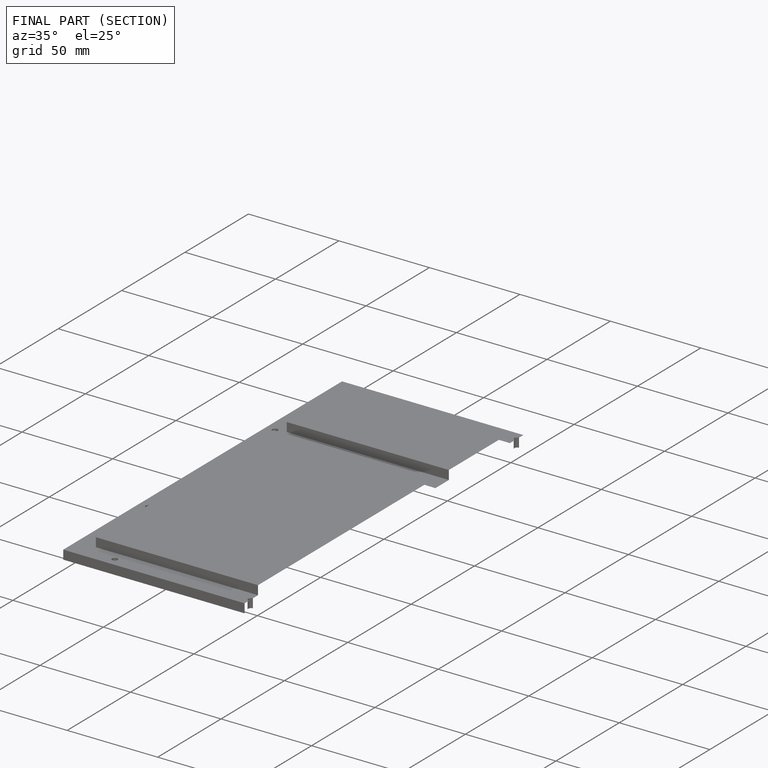
[diagram: finished part — half-section view (interior)]
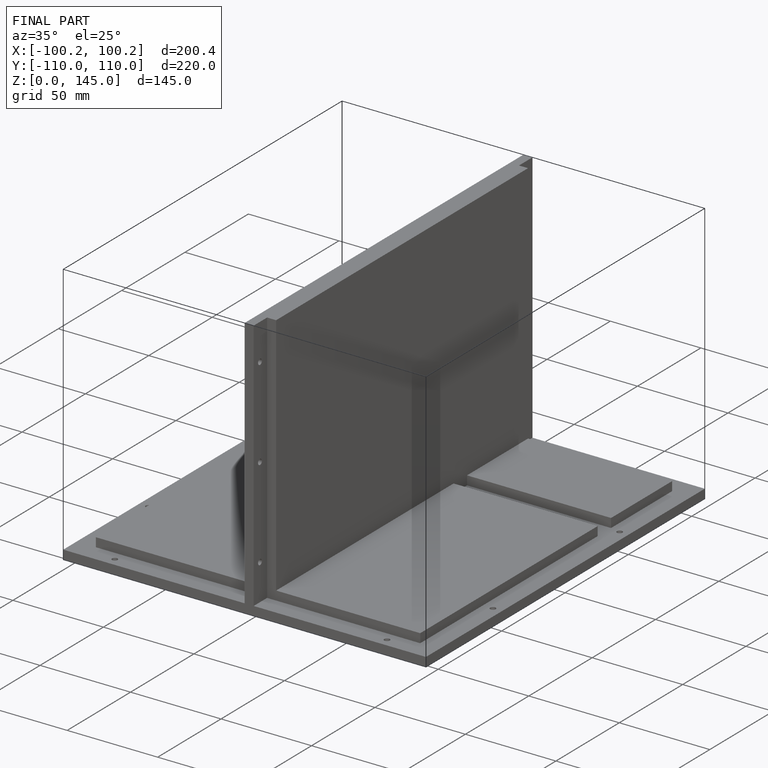
[diagram: finished part — iso view with bounding-box wireframe]
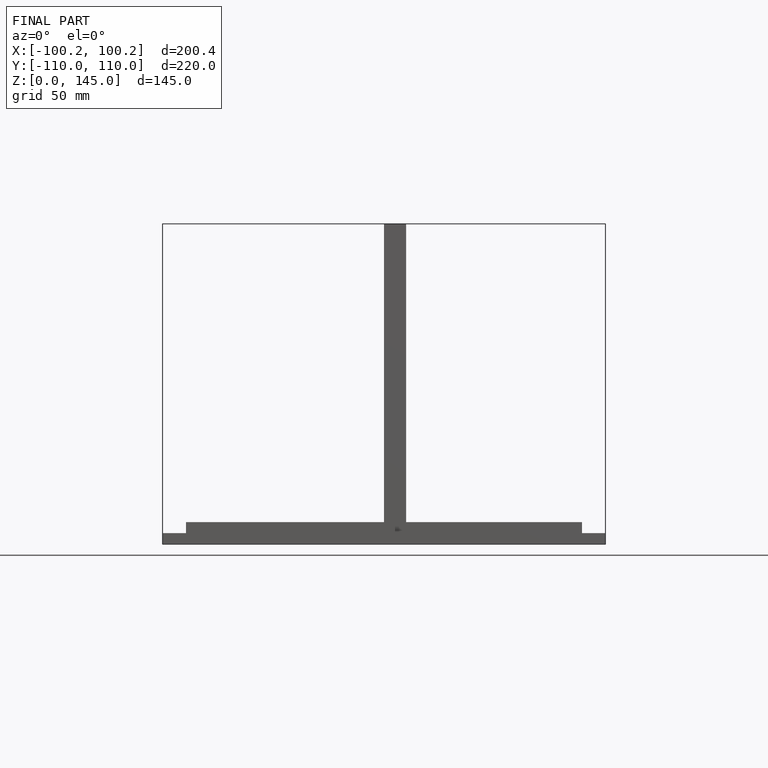
[diagram: finished part — front view with bounding-box wireframe]
